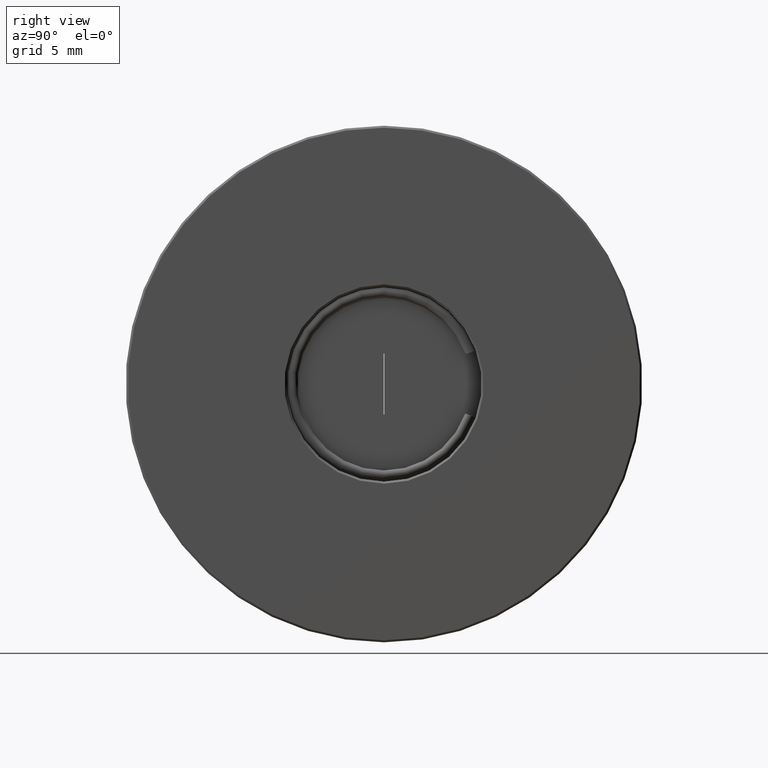
[diagram: clean part render]
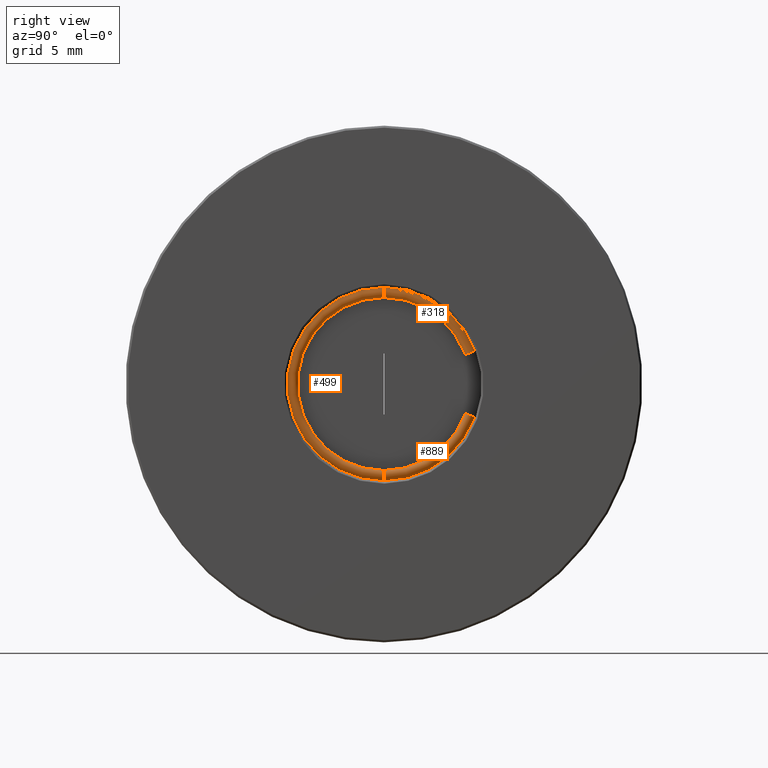
[diagram: same view with one multi-face feature highlighted, each face labeled with its STEP entity id]
A machine part, right view. The highlighted faces form ONE feature: a constant-radius fillet chain: 3 tangent blend faces with common blend radius 0.25 mm. The faces share edges in the B-rep.
Their STEP definitions:
[1] entity #889 (Torus):
#27 = EDGE_CURVE ( 'NONE', #81, #665, #789, .T. ) ;
#28 = DIRECTION ( 'NONE',  ( 3.104242009642707308E-15, 1.000000000000000000, -6.581577388350236595E-11 ) ) ;
#65 = DIRECTION ( 'NONE',  ( 1.000000000000000000, -3.053113317719177725E-15, -1.221245326846538123E-15 ) ) ;
#77 = ORIENTED_EDGE ( 'NONE', *, *, #85, .T. ) ;
#81 = VERTEX_POINT ( 'NONE', #315 ) ;
#85 = EDGE_CURVE ( 'NONE', #81, #353, #150, .T. ) ;
#150 = CIRCLE ( 'NONE', #428, 4.750000000000000000 ) ;
#216 = DIRECTION ( 'NONE',  ( 3.469446951953611033E-15, -0.9396926207634005435, 0.3420201433875083574 ) ) ;
#233 = ORIENTED_EDGE ( 'NONE', *, *, #27, .F. ) ;
#248 = DIRECTION ( 'NONE',  ( -1.221245327047478942E-15, -6.581508912423552347E-11, -1.000000000000000000 ) ) ;
#293 = CARTESIAN_POINT ( 'NONE',  ( -4.034863851252988631, 5.900298789711156289, 23.77540431890931671 ) ) ;
#310 = CARTESIAN_POINT ( 'NONE',  ( -4.034863851252994849, 1.436758840788832314, 20.89999999999999858 ) ) ;
#315 = CARTESIAN_POINT ( 'NONE',  ( -4.034863851253006395, 1.436758840772378365, 20.64999999999999858 ) ) ;
#337 = CARTESIAN_POINT ( 'NONE',  ( -4.034863851253000178, 1.436758841085000071, 25.39999999999999858 ) ) ;
#353 = VERTEX_POINT ( 'NONE', #293 ) ;
#383 = DIRECTION ( 'NONE',  ( 1.000000000000000000, -3.053113317719177725E-15, -1.221245326846538123E-15 ) ) ;
#390 = DIRECTION ( 'NONE',  ( -3.053113317638805026E-15, -1.000000000000000000, 6.581508406600454517E-11 ) ) ;
#409 = CIRCLE ( 'NONE', #944, 0.2500000000000002220 ) ;
#428 = AXIS2_PLACEMENT_3D ( 'NONE', #467, #748, #28 ) ;
#439 = CARTESIAN_POINT ( 'NONE',  ( -4.034863851253018829, 5.665375634520317227, 23.86090935475618835 ) ) ;
#467 = CARTESIAN_POINT ( 'NONE',  ( -4.034863851253000178, 1.436758841085000071, 25.39999999999999858 ) ) ;
#508 = EDGE_LOOP ( 'NONE', ( #233, #77, #942, #601 ) ) ;
#553 = DIRECTION ( 'NONE',  ( 3.061276722312012589E-15, 1.000000000000000000, -6.581581684878969820E-11 ) ) ;
#601 = ORIENTED_EDGE ( 'NONE', *, *, #637, .F. ) ;
#605 = DIRECTION ( 'NONE',  ( 1.000000000000000000, -3.469446951953611033E-15, 0.000000000000000000 ) ) ;
#637 = EDGE_CURVE ( 'NONE', #665, #719, #695, .T. ) ;
#665 = VERTEX_POINT ( 'NONE', #852 ) ;
#679 = CARTESIAN_POINT ( 'NONE',  ( -4.034863851253000178, 1.436758841085000071, 25.39999999999999858 ) ) ;
#695 = CIRCLE ( 'NONE', #908, 4.250000000000000000 ) ;
#719 = VERTEX_POINT ( 'NONE', #765 ) ;
#740 = FACE_OUTER_BOUND ( 'NONE', #508, .T. ) ;
#748 = DIRECTION ( 'NONE',  ( 1.000000000000000000, -3.053113317719177725E-15, -1.221245326846538123E-15 ) ) ;
#762 = EDGE_CURVE ( 'NONE', #353, #719, #409, .T. ) ;
#765 = CARTESIAN_POINT ( 'NONE',  ( -4.034863851252989519, 5.430452479329460402, 23.94641439060306709 ) ) ;
#771 = AXIS2_PLACEMENT_3D ( 'NONE', #310, #390, #605 ) ;
#789 = CIRCLE ( 'NONE', #771, 0.2500000000000002220 ) ;
#852 = CARTESIAN_POINT ( 'NONE',  ( -4.034863851253000178, 1.436758840805285820, 21.14999999999999858 ) ) ;
#889 = ADVANCED_FACE ( 'NONE', ( #740 ), #896, .T. ) ;
#896 = TOROIDAL_SURFACE ( 'NONE', #929, 4.500000000000000000, 0.2500000000000000000 ) ;
#908 = AXIS2_PLACEMENT_3D ( 'NONE', #337, #65, #553 ) ;
#929 = AXIS2_PLACEMENT_3D ( 'NONE', #679, #383, #248 ) ;
#939 = DIRECTION ( 'NONE',  ( 2.191821476484100505E-15, -0.3420201433875058039, -0.9396926207634015427 ) ) ;
#942 = ORIENTED_EDGE ( 'NONE', *, *, #762, .T. ) ;
#944 = AXIS2_PLACEMENT_3D ( 'NONE', #439, #939, #216 ) ;
[2] entity #499 (Torus):
#2 = ORIENTED_EDGE ( 'NONE', *, *, #721, .T. ) ;
#27 = EDGE_CURVE ( 'NONE', #81, #665, #789, .T. ) ;
#66 = CARTESIAN_POINT ( 'NONE',  ( -4.034863851253000178, 1.436758841085000071, 25.39999999999999858 ) ) ;
#81 = VERTEX_POINT ( 'NONE', #315 ) ;
#193 = DIRECTION ( 'NONE',  ( 3.053113317638805026E-15, 1.000000000000000000, -6.581520653068446578E-11 ) ) ;
#200 = DIRECTION ( 'NONE',  ( 3.104242009642707308E-15, 1.000000000000000000, -6.581577388350236595E-11 ) ) ;
#208 = EDGE_CURVE ( 'NONE', #933, #665, #580, .T. ) ;
#237 = EDGE_CURVE ( 'NONE', #546, #933, #254, .T. ) ;
#240 = CARTESIAN_POINT ( 'NONE',  ( -4.034863851252997513, 1.436758841364714767, 29.64999999999999858 ) ) ;
#254 = CIRCLE ( 'NONE', #612, 0.2500000000000002220 ) ;
#255 = AXIS2_PLACEMENT_3D ( 'NONE', #325, #476, #392 ) ;
#310 = CARTESIAN_POINT ( 'NONE',  ( -4.034863851252994849, 1.436758840788832314, 20.89999999999999858 ) ) ;
#315 = CARTESIAN_POINT ( 'NONE',  ( -4.034863851253006395, 1.436758840772378365, 20.64999999999999858 ) ) ;
#325 = CARTESIAN_POINT ( 'NONE',  ( -4.034863851253000178, 1.436758841085000071, 25.39999999999999858 ) ) ;
#390 = DIRECTION ( 'NONE',  ( -3.053113317638805026E-15, -1.000000000000000000, 6.581508406600454517E-11 ) ) ;
#392 = DIRECTION ( 'NONE',  ( -1.221245327047478942E-15, -6.581508912423552347E-11, -1.000000000000000000 ) ) ;
#400 = CARTESIAN_POINT ( 'NONE',  ( -4.034863851252993960, 1.436758841397622444, 30.14999999999999858 ) ) ;
#476 = DIRECTION ( 'NONE',  ( 1.000000000000000000, -3.053113317719177725E-15, -1.221245326846538123E-15 ) ) ;
#492 = CARTESIAN_POINT ( 'NONE',  ( -4.034863851253000178, 1.436758841085000071, 25.39999999999999858 ) ) ;
#498 = DIRECTION ( 'NONE',  ( -1.000000000000000000, 3.469446951953611033E-15, 0.000000000000000000 ) ) ;
#499 = ADVANCED_FACE ( 'NONE', ( #538 ), #518, .T. ) ;
#515 = ORIENTED_EDGE ( 'NONE', *, *, #27, .T. ) ;
#518 = TOROIDAL_SURFACE ( 'NONE', #255, 4.500000000000000000, 0.2500000000000000000 ) ;
#538 = FACE_OUTER_BOUND ( 'NONE', #841, .T. ) ;
#546 = VERTEX_POINT ( 'NONE', #400 ) ;
#570 = DIRECTION ( 'NONE',  ( 3.061276722312012589E-15, 1.000000000000000000, -6.581581684878969820E-11 ) ) ;
#580 = CIRCLE ( 'NONE', #725, 4.250000000000000000 ) ;
#599 = CIRCLE ( 'NONE', #862, 4.750000000000000000 ) ;
#605 = DIRECTION ( 'NONE',  ( 1.000000000000000000, -3.469446951953611033E-15, 0.000000000000000000 ) ) ;
#612 = AXIS2_PLACEMENT_3D ( 'NONE', #850, #193, #498 ) ;
#625 = ORIENTED_EDGE ( 'NONE', *, *, #237, .F. ) ;
#665 = VERTEX_POINT ( 'NONE', #852 ) ;
#721 = EDGE_CURVE ( 'NONE', #546, #81, #599, .T. ) ;
#725 = AXIS2_PLACEMENT_3D ( 'NONE', #66, #790, #570 ) ;
#771 = AXIS2_PLACEMENT_3D ( 'NONE', #310, #390, #605 ) ;
#789 = CIRCLE ( 'NONE', #771, 0.2500000000000002220 ) ;
#790 = DIRECTION ( 'NONE',  ( 1.000000000000000000, -3.053113317719177725E-15, -1.221245326846538123E-15 ) ) ;
#808 = ORIENTED_EDGE ( 'NONE', *, *, #208, .F. ) ;
#841 = EDGE_LOOP ( 'NONE', ( #625, #2, #515, #808 ) ) ;
#850 = CARTESIAN_POINT ( 'NONE',  ( -4.034863851253005507, 1.436758841381168494, 29.89999999999999858 ) ) ;
#852 = CARTESIAN_POINT ( 'NONE',  ( -4.034863851253000178, 1.436758840805285820, 21.14999999999999858 ) ) ;
#862 = AXIS2_PLACEMENT_3D ( 'NONE', #492, #914, #200 ) ;
#914 = DIRECTION ( 'NONE',  ( 1.000000000000000000, -3.053113317719177725E-15, -1.221245326846538123E-15 ) ) ;
#933 = VERTEX_POINT ( 'NONE', #240 ) ;
[3] entity #318 (Torus):
#1 = EDGE_CURVE ( 'NONE', #247, #933, #180, .T. ) ;
#32 = AXIS2_PLACEMENT_3D ( 'NONE', #61, #350, #561 ) ;
#61 = CARTESIAN_POINT ( 'NONE',  ( -4.034863851253000178, 1.436758841085000071, 25.39999999999999858 ) ) ;
#91 = VERTEX_POINT ( 'NONE', #821 ) ;
#116 = TOROIDAL_SURFACE ( 'NONE', #32, 4.500000000000000000, 0.2500000000000000000 ) ;
#120 = CARTESIAN_POINT ( 'NONE',  ( -4.034863851252985967, 5.430452479520808673, 26.85358560887116042 ) ) ;
#142 = CARTESIAN_POINT ( 'NONE',  ( -4.034863851253000178, 1.436758841085000071, 25.39999999999999858 ) ) ;
#180 = CIRCLE ( 'NONE', #712, 4.250000000000000000 ) ;
#181 = EDGE_CURVE ( 'NONE', #91, #546, #503, .T. ) ;
#193 = DIRECTION ( 'NONE',  ( 3.053113317638805026E-15, 1.000000000000000000, -6.581520653068446578E-11 ) ) ;
#198 = DIRECTION ( 'NONE',  ( 3.104242009642707308E-15, 1.000000000000000000, -6.581577388350236595E-11 ) ) ;
#237 = EDGE_CURVE ( 'NONE', #546, #933, #254, .T. ) ;
#240 = CARTESIAN_POINT ( 'NONE',  ( -4.034863851252997513, 1.436758841364714767, 29.64999999999999858 ) ) ;
#247 = VERTEX_POINT ( 'NONE', #120 ) ;
#254 = CIRCLE ( 'NONE', #612, 0.2500000000000002220 ) ;
#261 = DIRECTION ( 'NONE',  ( 1.000000000000000000, -3.053113317719177725E-15, -1.221245326846538123E-15 ) ) ;
#271 = AXIS2_PLACEMENT_3D ( 'NONE', #592, #447, #940 ) ;
#294 = ORIENTED_EDGE ( 'NONE', *, *, #181, .T. ) ;
#318 = ADVANCED_FACE ( 'NONE', ( #707 ), #116, .T. ) ;
#334 = EDGE_LOOP ( 'NONE', ( #690, #294, #382, #423 ) ) ;
#350 = DIRECTION ( 'NONE',  ( 1.000000000000000000, -3.053113317719177725E-15, -1.221245326846538123E-15 ) ) ;
#382 = ORIENTED_EDGE ( 'NONE', *, *, #237, .T. ) ;
#400 = CARTESIAN_POINT ( 'NONE',  ( -4.034863851252993960, 1.436758841397622444, 30.14999999999999858 ) ) ;
#410 = EDGE_CURVE ( 'NONE', #91, #247, #861, .T. ) ;
#423 = ORIENTED_EDGE ( 'NONE', *, *, #1, .F. ) ;
#437 = DIRECTION ( 'NONE',  ( 1.000000000000000000, -3.053113317719177725E-15, -1.221245326846538123E-15 ) ) ;
#447 = DIRECTION ( 'NONE',  ( 1.033689675075031444E-16, 0.3420201432638105277, -0.9396926208084229737 ) ) ;
#498 = DIRECTION ( 'NONE',  ( -1.000000000000000000, 3.469446951953611033E-15, 0.000000000000000000 ) ) ;
#503 = CIRCLE ( 'NONE', #943, 4.750000000000000000 ) ;
#546 = VERTEX_POINT ( 'NONE', #400 ) ;
#561 = DIRECTION ( 'NONE',  ( -1.221245327047478942E-15, -6.581508912423552347E-11, -1.000000000000000000 ) ) ;
#592 = CARTESIAN_POINT ( 'NONE',  ( -4.034863851253018829, 5.665375634722910725, 26.93909064468711634 ) ) ;
#612 = AXIS2_PLACEMENT_3D ( 'NONE', #850, #193, #498 ) ;
#690 = ORIENTED_EDGE ( 'NONE', *, *, #410, .F. ) ;
#707 = FACE_OUTER_BOUND ( 'NONE', #334, .T. ) ;
#712 = AXIS2_PLACEMENT_3D ( 'NONE', #142, #437, #723 ) ;
#723 = DIRECTION ( 'NONE',  ( 3.061276722312012589E-15, 1.000000000000000000, -6.581581684878969820E-11 ) ) ;
#821 = CARTESIAN_POINT ( 'NONE',  ( -4.034863851252984190, 5.900298789925018994, 27.02459568050306515 ) ) ;
#850 = CARTESIAN_POINT ( 'NONE',  ( -4.034863851253005507, 1.436758841381168494, 29.89999999999999858 ) ) ;
#853 = CARTESIAN_POINT ( 'NONE',  ( -4.034863851253000178, 1.436758841085000071, 25.39999999999999858 ) ) ;
#861 = CIRCLE ( 'NONE', #271, 0.2500000000000000000 ) ;
#933 = VERTEX_POINT ( 'NONE', #240 ) ;
#940 = DIRECTION ( 'NONE',  ( 3.469446951953614189E-15, -0.9396926208084209753, -0.3420201432638159122 ) ) ;
#943 = AXIS2_PLACEMENT_3D ( 'NONE', #853, #261, #198 ) ;